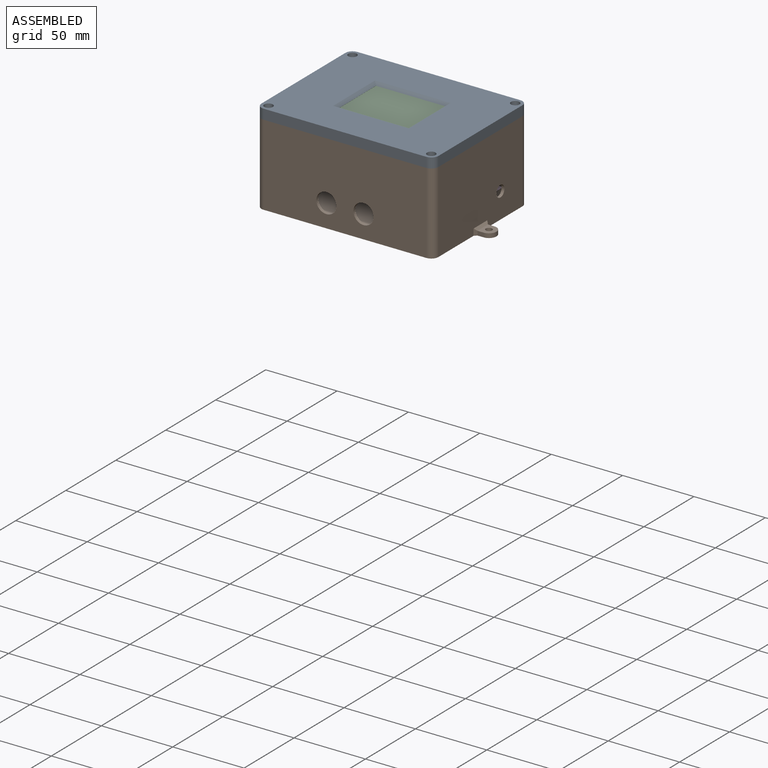
[diagram: assembled view]
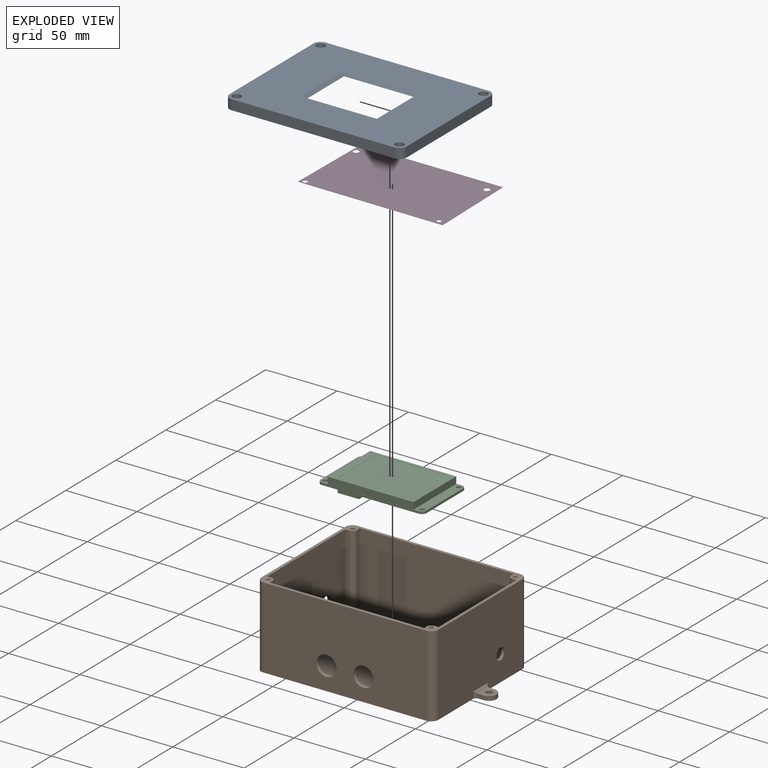
[diagram: exploded view]
GUIDED TOUR — MATED ASSEMBLY (Onshape document 58e7ce23c5b46e0fc70456bf, AutoMate assembly 58e7ce23c5b46e0fc70456bf_da03f22ec67726d609df5430_ff83bb6df8d458dddf4f4c58_default)

This assembly has 4 components, labeled P0..P3 below (a component is one placed occurrence of a part; the same part can appear more than once), held together by 3 mates. A mate is a constraint between two components; its type names the relative motion it leaves free:
  FASTENED — locks the two components together rigidly (no relative motion).
Axis/direction vectors are unit vectors and 'through' points are millimeter coordinates, both in the assembly's world frame.

MATES
  1. FASTENED "Fastened 1": P0 <-> P2, direction (0.000, 0.000, -1.000) through (11.23, 36.32, 40.22) mm
  2. FASTENED "Fastened 2": P0 <-> P1, direction (0.000, 0.000, -1.000) through (102.23, 96.68, 39.92) mm
  3. FASTENED "Fastened 3": P1 <-> P3, direction (0.000, 0.000, 1.000) through (-0.80, 84.65, -6.58) mm

ASSEMBLY ORDER
  1. P3 — the base component [order verified]
  2. P1 [order verified]
  3. P2 [order verified]
  4. P0 [order verified]
Order-tag legend:
  [order verified] — this step's position reverses a verified removal order: the component was checked to insert without passing through the ones already placed.

Of the 4 components, 2 carry the full construction recipe — the FeatureScript program that regenerates the part's solid from scratch; the rest are supplied as boundary geometry only.
Each toured component is shown spotlighted twice — in the assembled view, then in the exploded view, where a leader line traces a displaced component back to its assembled socket (saturated green if recipe-attached, orange if geometry-only; every other component desaturated gray) — followed by its recipe or geometry summary and the mates that hold it.
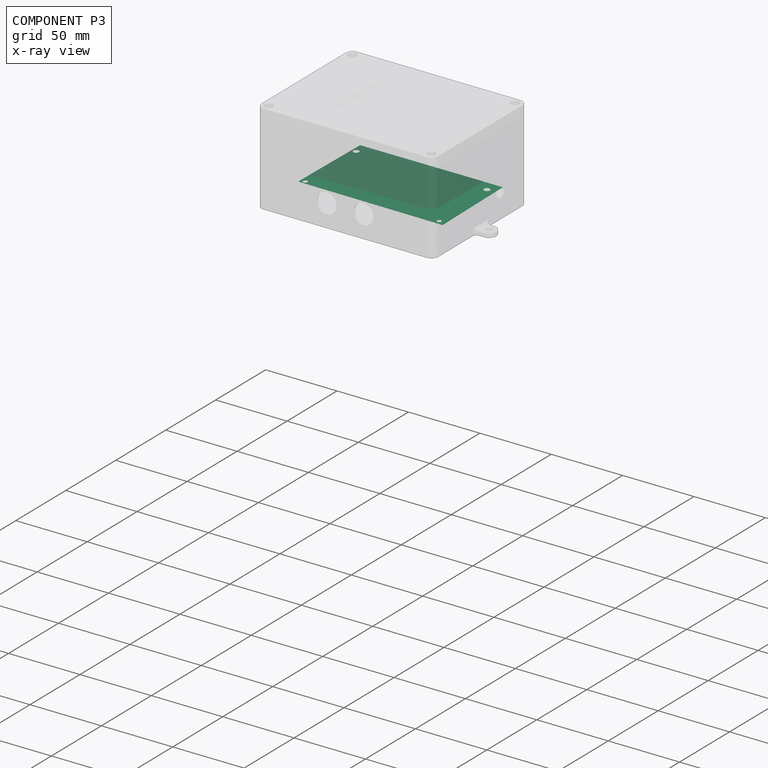
[diagram: component P3 — x-ray view]
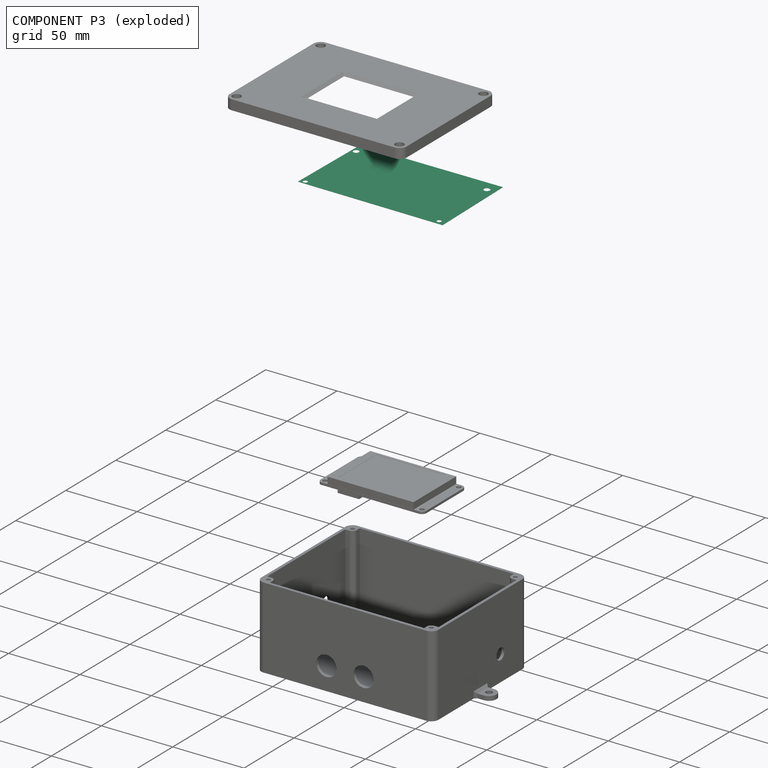
[diagram: component P3 — exploded]
COMPONENT P3 — recipe-attached (CADFS 00688829, mesh-verified: the recipe's output STEP matches this component's geometry to below the mesh-comparison resolution (tessellation chordal tolerance ~0.179 mm)).
Held by: FASTENED mate "Fastened 3" to P1.
Construction recipe (FeatureScript — the CAD program that rebuilds this solid; sketch coordinates are in the units given by the * unit suffixes, e.g. mm):

FeatureScript 1511;
import(path : "onshape/std/geometry.fs", version : "1511.0");
import(path : "onshape/std/common.fs", version : "1511.0");
const mm = millimeter;
const VERTEX = EntityType.VERTEX;
const EDGE = EntityType.EDGE;
const FACE = EntityType.FACE;
const BODY = EntityType.BODY;
function v(x, y){return vector(x, y);}
function OD(order){return orderDisambiguation(order);}
function OSD(set){return originalSetDisambiguation(set);}
function TD(topology){return topologyDisambiguation(topology);}
function TDD(query){return trueDependencyDisambiguation(query);}
function sQuery(a, b, c) {return sketchEntityQuery(a, b, c);}

annotation { "Feature Type Name" : "Feature", "Feature Type Description" : "" }
export const myFeature = defineFeature(function(context is Context, id is Id, definition is map)
    precondition{}
    {
        {
            var Q0;
            Q0=qCreatedBy(makeId("Top.planeOp"),FACE);
            var sketch = newSketch(context, id + "F0", { "sketchPlane" : qUnion([Q0])});
            skCircle(sketch, "E0", {"center": v(-54.34, 24.76) * mm, "radius": 1.97 * mm});
            skPoint(sketch, "E0.first.point", {"position": v(-55.78, 26.1) * mm});
            skPoint(sketch, "E0.second.point", {"position": v(-52.76, 25.93) * mm});
            skPoint(sketch, "E0.third.point", {"position": v(-55, 22.9) * mm});
            skCircle(sketch, "E1", {"center": v(-54.75, -25.45) * mm, "radius": 1.48 * mm});
            skPoint(sketch, "E1.first.point", {"position": v(-55.68, -24.3) * mm});
            skPoint(sketch, "E1.second.point", {"position": v(-53.27, -25.3) * mm});
            skPoint(sketch, "E1.third.point", {"position": v(-54.85, -26.93) * mm});
            skCircle(sketch, "E2", {"center": v(38.96, -25.45) * mm, "radius": 1.43 * mm});
            skPoint(sketch, "E2.first.point", {"position": v(38.01, -24.38) * mm});
            skPoint(sketch, "E2.second.point", {"position": v(40.38, -25.24) * mm});
            skPoint(sketch, "E2.third.point", {"position": v(38.75, -26.86) * mm});
            skCircle(sketch, "E3", {"center": v(36.9, 25.33) * mm, "radius": 2.06 * mm});
            skPoint(sketch, "E3.first.point", {"position": v(35.99, 27.18) * mm});
            skPoint(sketch, "E3.second.point", {"position": v(38.96, 25.26) * mm});
            skPoint(sketch, "E3.third.point", {"position": v(35.86, 23.55) * mm});
            skLineSegment(sketch, "E4", {"start": v(36.9, 25.33) * mm, "end": v(-54.34, 24.76) * mm, "construction": true});
            skLineSegment(sketch, "E5", {"start": v(-54.34, 24.76) * mm, "end": v(-54.75, -25.45) * mm, "construction": true});
            skLineSegment(sketch, "E6", {"start": v(-54.75, -25.45) * mm, "end": v(38.96, -25.45) * mm, "construction": true});
            skLineSegment(sketch, "E7", {"start": v(38.96, -25.45) * mm, "end": v(36.9, 25.33) * mm, "construction": true});
            skLineSegment(sketch, "E8", {"start": v(37.93, -0.06) * mm, "end": v(-8.3, -0.2) * mm, "construction": true});
            skLineSegment(sketch, "E9", {"start": v(-8.3, -0.2) * mm, "end": v(-54.54, -0.34) * mm, "construction": true});
            skLineSegment(sketch, "E10", {"start": v(-57.3, 32.98) * mm, "end": v(42.5, 33.29) * mm});
            skLineSegment(sketch, "E11", {"start": v(42.5, 33.29) * mm, "end": v(43.72, -28.75) * mm});
            skLineSegment(sketch, "E12", {"start": v(43.72, -28.75) * mm, "end": v(-58.16, -27.94) * mm});
            skLineSegment(sketch, "E13", {"start": v(-58.16, -27.94) * mm, "end": v(-57.3, 32.98) * mm});
            skSolve(sketch);
        }
        {
            var Q0;
            Q0 = qSketchRegion(id + "F0", true);
            var Q1;
            Q1=sQuery(id+"F0.wireOp",EDGE,"E13");
            var Q2;
            Q2=sQuery(id+"F0.wireOp",EDGE,"E10");
            var Q3;
            Q3=sQuery(id+"F0.wireOp",EDGE,"E11");
            var Q4;
            Q4=sQuery(id+"F0.wireOp",EDGE,"E12");
            extrude(context, id + "F1", {"entities" : qUnion([Q0]), "surfaceEntities" : qUnion([Q1, Q2, Q3, Q4]), "depth" : 0.1 * mm, "offsetDistance" : 25 * mm});
        }
    });
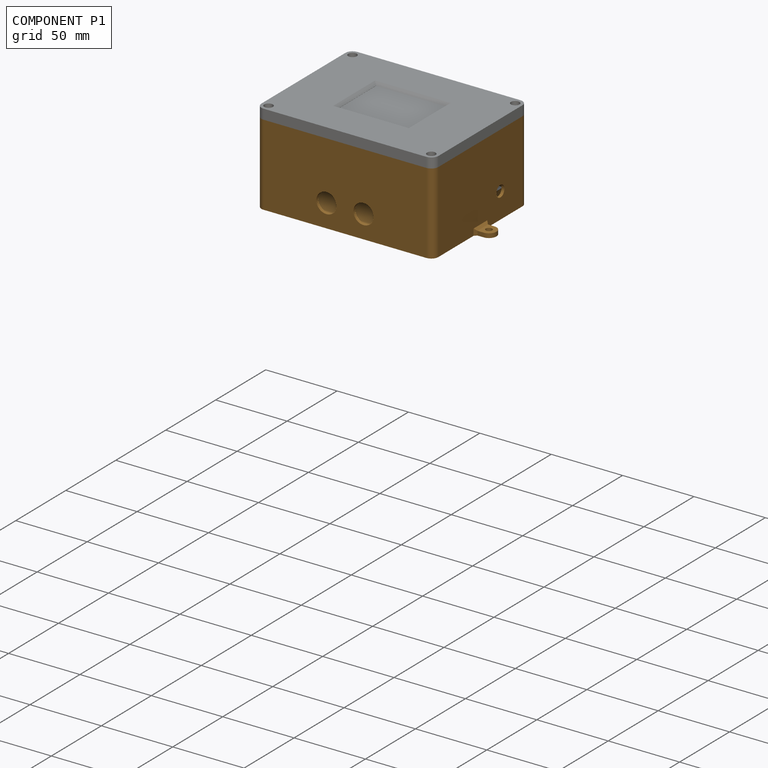
[diagram: component P1 — assembled]
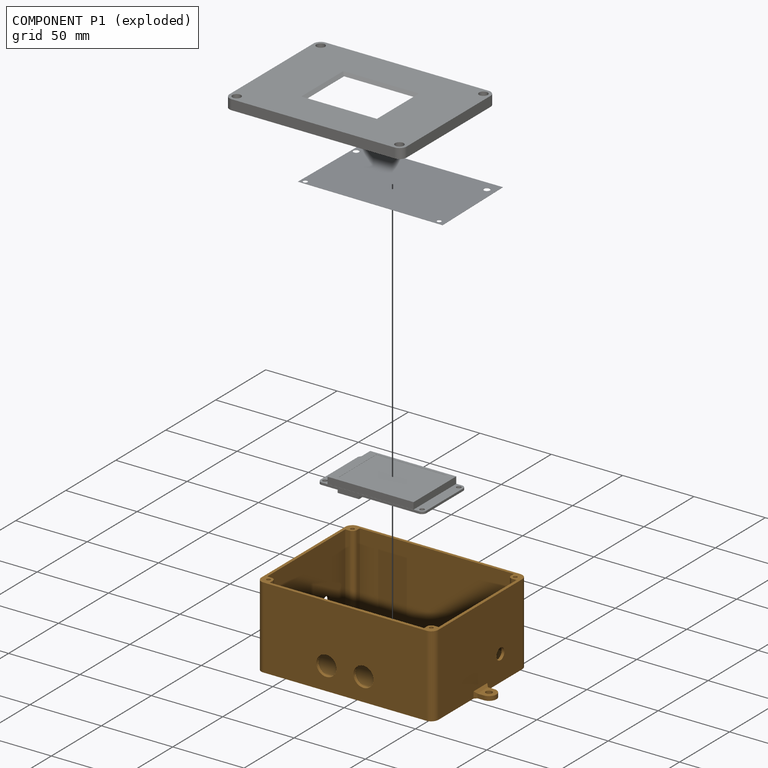
[diagram: component P1 — exploded]
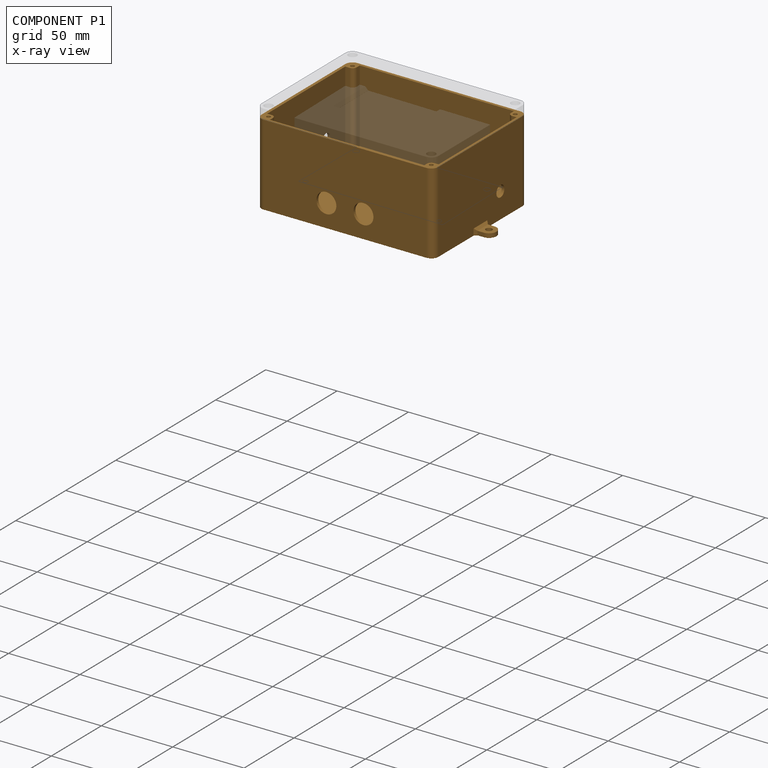
[diagram: component P1 — x-ray view]
COMPONENT P1 — geometry summary (no construction recipe available for this part):
  bounding box: 146.5 x 94.0 x 57.0 mm
  B-rep topology: 1 solid, 171 faces, 812 edges
  volume: 80636 mm^3 (10% of its bounding box)
  symmetry: mirror-symmetric across its x mid-plane
Held by: FASTENED mate "Fastened 2" to P0; FASTENED mate "Fastened 3" to P3.
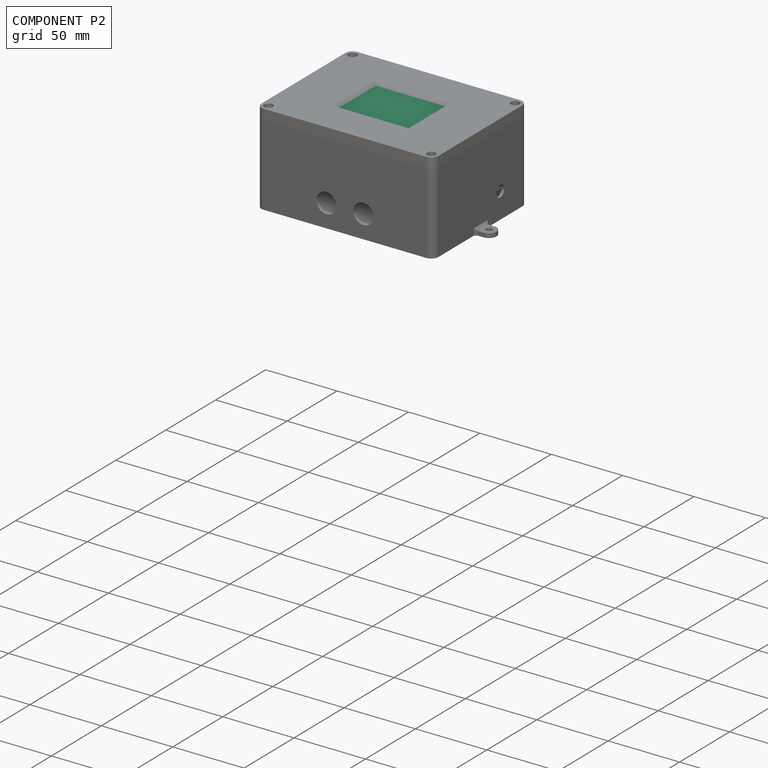
[diagram: component P2 — assembled]
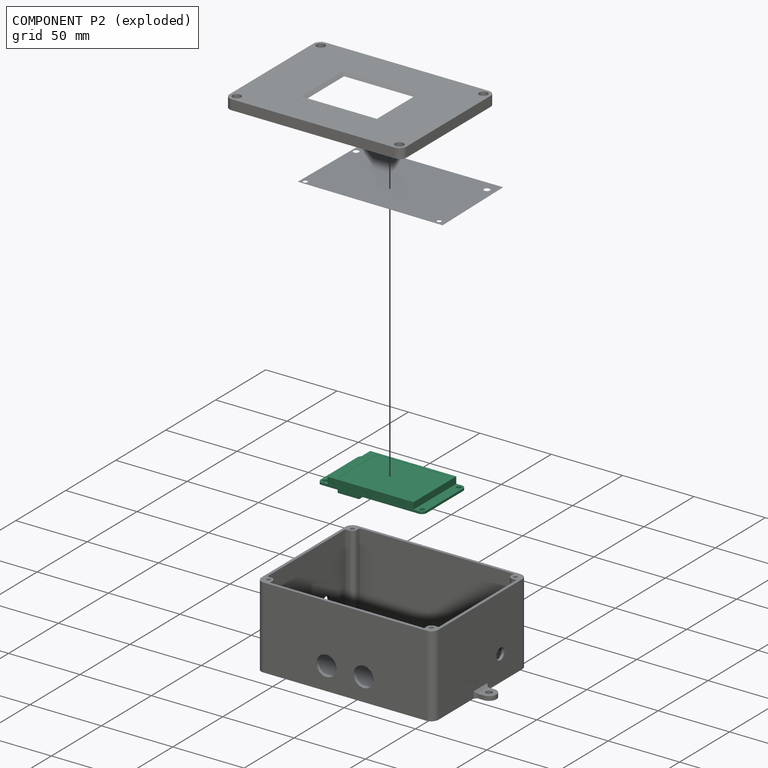
[diagram: component P2 — exploded]
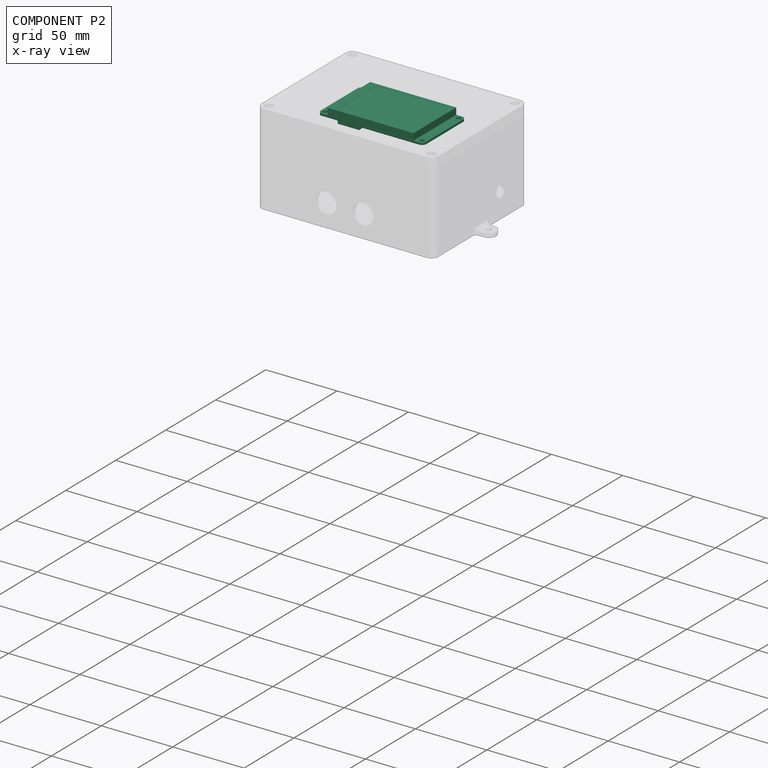
[diagram: component P2 — x-ray view]
COMPONENT P2 — recipe-attached (CADFS 00657913, mesh-verified: the recipe's output STEP matches this component's geometry to below the mesh-comparison resolution (tessellation chordal tolerance ~0.13 mm)).
Held by: FASTENED mate "Fastened 1" to P0.
Construction recipe (FeatureScript — the CAD program that rebuilds this solid; sketch coordinates are in the units given by the * unit suffixes, e.g. mm):

FeatureScript 1511;
import(path : "onshape/std/geometry.fs", version : "1511.0");
import(path : "onshape/std/common.fs", version : "1511.0");
const mm = millimeter;
const VERTEX = EntityType.VERTEX;
const EDGE = EntityType.EDGE;
const FACE = EntityType.FACE;
const BODY = EntityType.BODY;
function v(x, y){return vector(x, y);}
function OD(order){return orderDisambiguation(order);}
function OSD(set){return originalSetDisambiguation(set);}
function TD(topology){return topologyDisambiguation(topology);}
function TDD(query){return trueDependencyDisambiguation(query);}
function sQuery(a, b, c) {return sketchEntityQuery(a, b, c);}

annotation { "Feature Type Name" : "Feature", "Feature Type Description" : "" }
export const myFeature = defineFeature(function(context is Context, id is Id, definition is map)
    precondition{}
    {
        {
            var Q0;
            Q0=qCreatedBy(makeId("Top.planeOp"),FACE);
            var sketch = newSketch(context, id + "F0", { "sketchPlane" : qUnion([Q0])});
            skLineSegment(sketch, "E0.bottom", {"start": v(37, -21.45) * mm, "end": v(-37, -21.45) * mm});
            skLineSegment(sketch, "E0.top", {"start": v(37, 21.45) * mm, "end": v(-37, 21.45) * mm});
            skLineSegment(sketch, "E0.left", {"start": v(37, -21.45) * mm, "end": v(37, 21.45) * mm});
            skLineSegment(sketch, "E0.right", {"start": v(-37, -21.45) * mm, "end": v(-37, 21.45) * mm});
            skPoint(sketch, "E0.middle", {"position": v(0, 0) * mm});
            skLineSegment(sketch, "E1.bottom", {"start": v(34, 18.36) * mm, "end": v(-34, 18.36) * mm, "construction": true});
            skLineSegment(sketch, "E1.top", {"start": v(34, -18.36) * mm, "end": v(-34, -18.36) * mm, "construction": true});
            skLineSegment(sketch, "E1.left", {"start": v(34, 18.36) * mm, "end": v(34, -18.36) * mm, "construction": true});
            skLineSegment(sketch, "E1.right", {"start": v(-34, 18.36) * mm, "end": v(-34, -18.36) * mm, "construction": true});
            skCircle(sketch, "E2", {"center": v(-34, 18.36) * mm, "radius": 1.6 * mm});
            skCircle(sketch, "E3", {"center": v(-34, -18.36) * mm, "radius": 1.6 * mm});
            skCircle(sketch, "E4", {"center": v(34, 18.36) * mm, "radius": 1.6 * mm});
            skCircle(sketch, "E5", {"center": v(34, -18.36) * mm, "radius": 1.6 * mm});
            skSolve(sketch);
        }
        {
            var Q0;
            Q0=makeQuery(id+"F0.imprint","IMPRINT",FACE,{"disambiguationData":[TD([[makeQuery(id+"F0.imprint","IMPRINT",EDGE,{"derivedFrom":sQuery(id+"F0.wireOp",EDGE,"E0.bottom")}),-1.0]])]});
            extrude(context, id + "F1", {"entities" : qUnion([Q0]), "depth" : 1.6 * mm, "offsetDistance" : 25 * mm});
        }
        {
            var Q0;
            Q0=makeQuery(id+"F1.opExtrude","CAP_FACE",FACE,{"disambiguationData":[OSD([sQuery(id+"F0.wireOp",EDGE,"E0.bottom"),sQuery(id+"F0.wireOp",EDGE,"E0.top"),sQuery(id+"F0.wireOp",EDGE,"E0.left"),sQuery(id+"F0.wireOp",EDGE,"E0.right"),sQuery(id+"F0.wireOp",EDGE,"E2"),sQuery(id+"F0.wireOp",EDGE,"E3"),sQuery(id+"F0.wireOp",EDGE,"E4"),sQuery(id+"F0.wireOp",EDGE,"E5")])],"isStart":false});
            var sketch = newSketch(context, id + "F2", { "sketchPlane" : qUnion([Q0])});
            skLineSegment(sketch, "E6.bottom", {"start": v(-30.13, 21.35) * mm, "end": v(30.13, 21.35) * mm});
            skLineSegment(sketch, "E6.top", {"start": v(-30.13, -21.37) * mm, "end": v(30.13, -21.37) * mm});
            skLineSegment(sketch, "E6.left", {"start": v(-30.13, 21.35) * mm, "end": v(-30.13, -21.37) * mm});
            skLineSegment(sketch, "E6.right", {"start": v(30.13, 21.35) * mm, "end": v(30.13, -21.37) * mm});
            skLineSegment(sketch, "E7", {"start": v(0, 21.35) * mm, "end": v(0, 0) * mm, "construction": true});
            skSolve(sketch);
        }
        {
            var Q0;
            Q0=makeQuery(id+"F2.imprint","IMPRINT",FACE,{"disambiguationData":[TD([[makeQuery(id+"F2.imprint","IMPRINT",EDGE,{"derivedFrom":sQuery(id+"F2.wireOp",EDGE,"E6.bottom")}),-1.0]])]});
            extrude(context, id + "F3", {"entities" : qUnion([Q0]), "operationType" : NewBodyOperationType.ADD, "depth" : 4.7 * mm, "offsetDistance" : 25 * mm});
        }
        {
            var Q0;
            Q0=makeQuery(id+"F3.opExtrude","CAP_FACE",FACE,{"disambiguationData":[OSD([sQuery(id+"F2.wireOp",EDGE,"E6.bottom"),sQuery(id+"F2.wireOp",EDGE,"E6.top"),sQuery(id+"F2.wireOp",EDGE,"E6.left"),sQuery(id+"F2.wireOp",EDGE,"E6.right")])],"isStart":false});
            var sketch = newSketch(context, id + "F4", { "sketchPlane" : qUnion([Q0])});
            skLineSegment(sketch, "E8.bottom", {"start": v(-24.48, 19.35) * mm, "end": v(24.48, 19.35) * mm});
            skLineSegment(sketch, "E8.top", {"start": v(-24.48, -18.65) * mm, "end": v(24.48, -18.65) * mm});
            skLineSegment(sketch, "E8.left", {"start": v(-24.48, 19.35) * mm, "end": v(-24.48, -18.65) * mm});
            skLineSegment(sketch, "E8.right", {"start": v(24.48, 19.35) * mm, "end": v(24.48, -18.65) * mm});
            skLineSegment(sketch, "E9", {"start": v(0, 19.35) * mm, "end": v(0, 0) * mm, "construction": true});
            skSolve(sketch);
        }
        {
            var Q0;
            Q0=qSketchRegion(id+"F4",true);
            extrude(context, id + "F5", {"entities" : qUnion([Q0]), "operationType" : NewBodyOperationType.REMOVE, "oppositeDirection" : true, "depth" : .1 * mm});
        }
        {
            var Q0;
            Q0=makeQuery(id+"F1.opExtrude","CAP_FACE",FACE,{"disambiguationData":[OSD([sQuery(id+"F0.wireOp",EDGE,"E0.bottom"),sQuery(id+"F0.wireOp",EDGE,"E0.top"),sQuery(id+"F0.wireOp",EDGE,"E0.left"),sQuery(id+"F0.wireOp",EDGE,"E0.right"),sQuery(id+"F0.wireOp",EDGE,"E2"),sQuery(id+"F0.wireOp",EDGE,"E3"),sQuery(id+"F0.wireOp",EDGE,"E4"),sQuery(id+"F0.wireOp",EDGE,"E5")])],"isStart":true});
            var sketch = newSketch(context, id + "F6", { "sketchPlane" : qUnion([Q0])});
            skLineSegment(sketch, "E10.bottom", {"start": v(-8, 6.45) * mm, "end": v(-23, 6.45) * mm});
            skLineSegment(sketch, "E10.top", {"start": v(-8, 21.45) * mm, "end": v(-23, 21.45) * mm});
            skLineSegment(sketch, "E10.left", {"start": v(-8, 6.45) * mm, "end": v(-8, 21.45) * mm});
            skLineSegment(sketch, "E10.right", {"start": v(-23, 6.45) * mm, "end": v(-23, 21.45) * mm});
            skLineSegment(sketch, "E11.bottom", {"start": v(-37, 7.5) * mm, "end": v(-29, 7.5) * mm});
            skLineSegment(sketch, "E11.top", {"start": v(-37, -7.5) * mm, "end": v(-29, -7.5) * mm});
            skLineSegment(sketch, "E11.left", {"start": v(-37, 7.5) * mm, "end": v(-37, -7.5) * mm});
            skLineSegment(sketch, "E11.right", {"start": v(-29, 7.5) * mm, "end": v(-29, -7.5) * mm});
            skPoint(sketch, "E12", {"position": v(-29, 0) * mm});
            skSolve(sketch);
        }
        {
            var Q0;
            Q0=makeQuery(id+"F6.imprint","IMPRINT",FACE,{"disambiguationData":[TD([[makeQuery(id+"F6.imprint","IMPRINT",EDGE,{"derivedFrom":sQuery(id+"F6.wireOp",EDGE,"E10.bottom")}),-1.0]])]});
            extrude(context, id + "F7", {"entities" : qUnion([Q0]), "operationType" : NewBodyOperationType.ADD, "depth" : 2 * mm});
        }
        {
            var Q0;
            Q0=makeQuery(id+"F6.imprint","IMPRINT",FACE,{"disambiguationData":[TD([[makeQuery(id+"F6.imprint","IMPRINT",EDGE,{"derivedFrom":sQuery(id+"F6.wireOp",EDGE,"E11.bottom")}),-1.0]])]});
            extrude(context, id + "F8", {"entities" : qUnion([Q0]), "operationType" : NewBodyOperationType.ADD, "depth" : 6 * mm});
        }
        {
            var Q0;
            Q0=makeQuery(id+"F1.opExtrude","SWEPT_EDGE",EDGE,{"disambiguationData":[OSD([sQuery(id+"F0.wireOp",EDGE,"E0.top"),sQuery(id+"F0.wireOp",EDGE,"E0.left")])]});
            var Q1;
            Q1=makeQuery(id+"F1.opExtrude","SWEPT_EDGE",EDGE,{"disambiguationData":[OSD([sQuery(id+"F0.wireOp",EDGE,"E0.bottom"),sQuery(id+"F0.wireOp",EDGE,"E0.left")])]});
            var Q2;
            Q2=makeQuery(id+"F1.opExtrude","SWEPT_EDGE",EDGE,{"disambiguationData":[OSD([sQuery(id+"F0.wireOp",EDGE,"E0.bottom"),sQuery(id+"F0.wireOp",EDGE,"E0.right")])]});
            var Q3;
            Q3=makeQuery(id+"F1.opExtrude","SWEPT_EDGE",EDGE,{"disambiguationData":[OSD([sQuery(id+"F0.wireOp",EDGE,"E0.top"),sQuery(id+"F0.wireOp",EDGE,"E0.right")])]});
            fillet(context, id + "F9", {"entities" : qUnion([Q0, Q1, Q2, Q3]), "radius" : 3 * mm, "tangentPropagation" : true, "allowEdgeOverflow" : false});
        }
    });
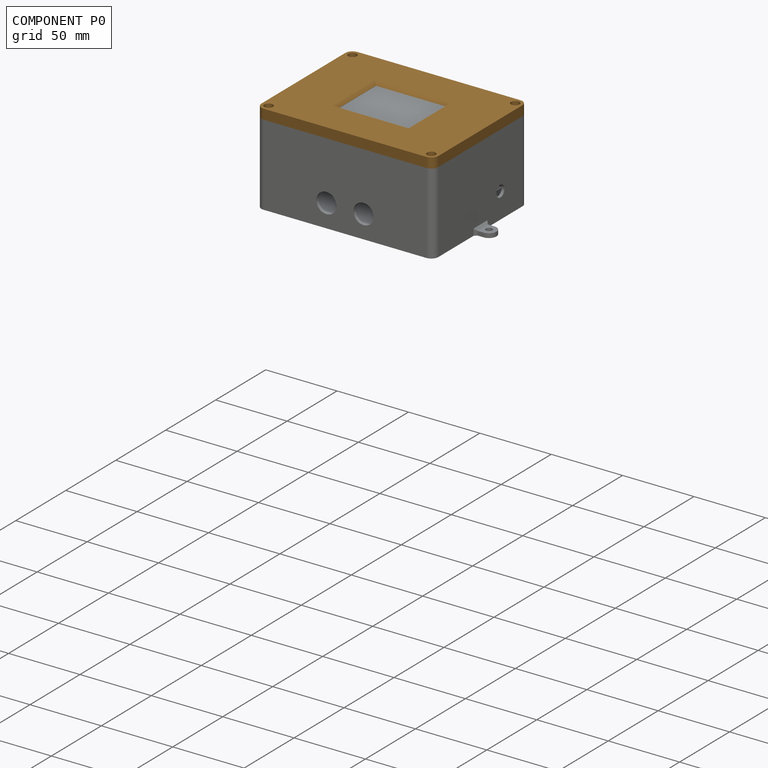
[diagram: component P0 — assembled]
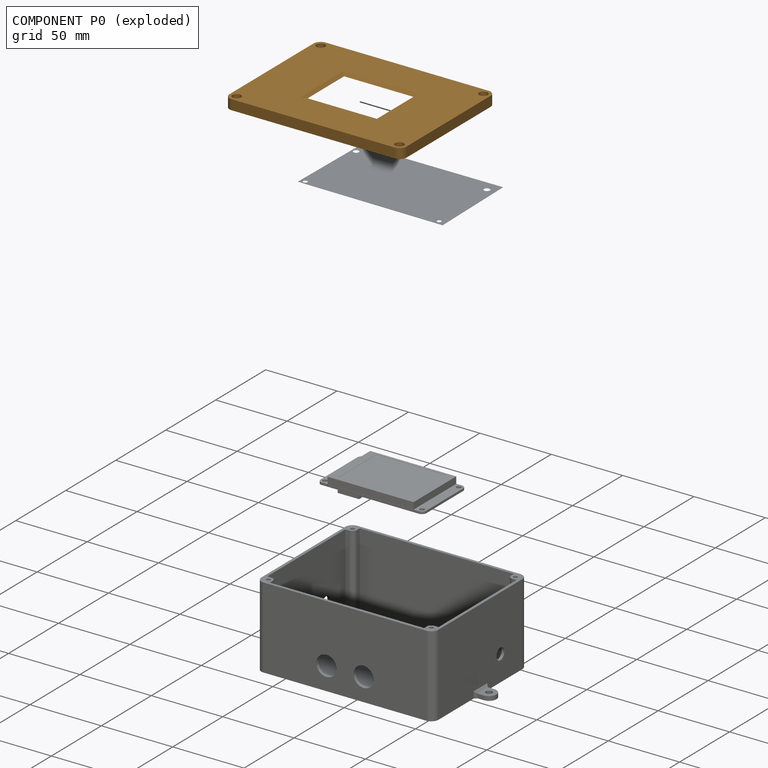
[diagram: component P0 — exploded]
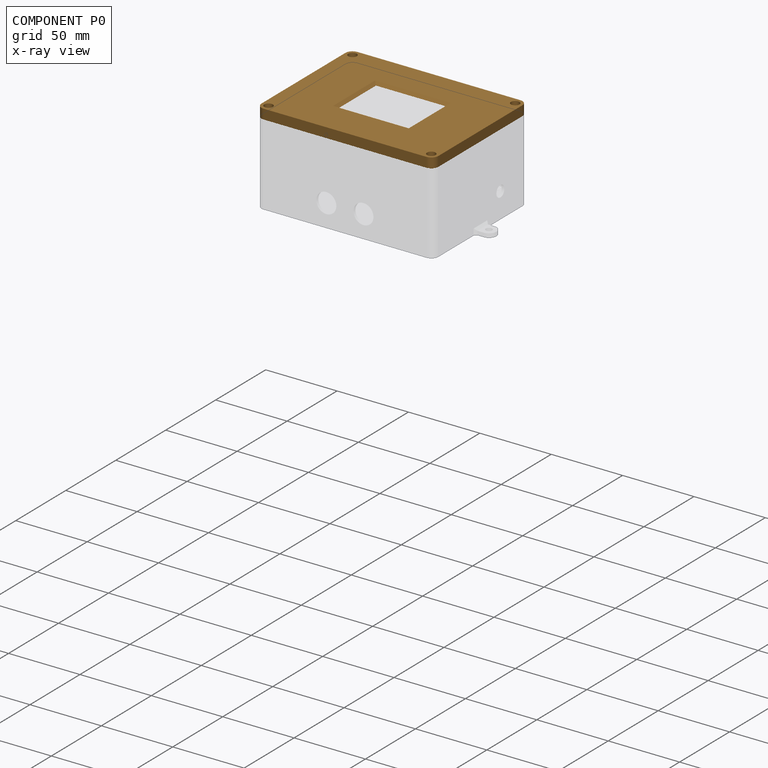
[diagram: component P0 — x-ray view]
COMPONENT P0 — geometry summary (no construction recipe available for this part):
  bounding box: 124.0 x 94.0 x 8.0 mm
  B-rep topology: 1 solid, 76 faces, 360 edges
  volume: 28057 mm^3 (30% of its bounding box)
  symmetry: 2-fold rotationally symmetric about the z axis; mirror-symmetric across its x mid-plane, y mid-plane
Held by: FASTENED mate "Fastened 1" to P2; FASTENED mate "Fastened 2" to P1.
PROVENANCE & LICENSES
Assembly (occurrences, transforms, mates, per-part STEP geometry): AutoMate dataset, Zenodo record 7776208, CC0.
Construction recipes: CADFS (HuggingFace VladPyatov/CADFS, CC-BY-4.0, layered over the ABC dataset), FeatureScript reconstruction programs keyed by ABC model id.
Join: ABC meta listings map ABC model id -> Onshape documentId; within a shared document, parts are matched by geometric signature (bounding-box dims + volume at 0.1% relative tolerance, exact B-rep face/solid counts).
Verification: 2 of this assembly's 4 components carry a recipe attachment, and every attachment is mesh-verified: the CADFS STEP and the AutoMate member STEP were compared as meshes in their shared local frame (symmetric sampled-point-to-mesh distance); worst across the 2 attachments: below the mesh-comparison resolution (tessellation chordal tolerance ~0.179 mm) on a 119 mm part.
Renders: orthographic iso camera (az 35 / el 25); the floor grid conveys scale (grid pitch printed in each image; no ruler). In the exploded view each component is displaced by its stored offset vector: the offsets alone carry the explosion direction (mate normal/axis signs are not orientation cues and do not encode it), and separation distances are assigned per mate-chain, not proportionally to assembly-order depth.
